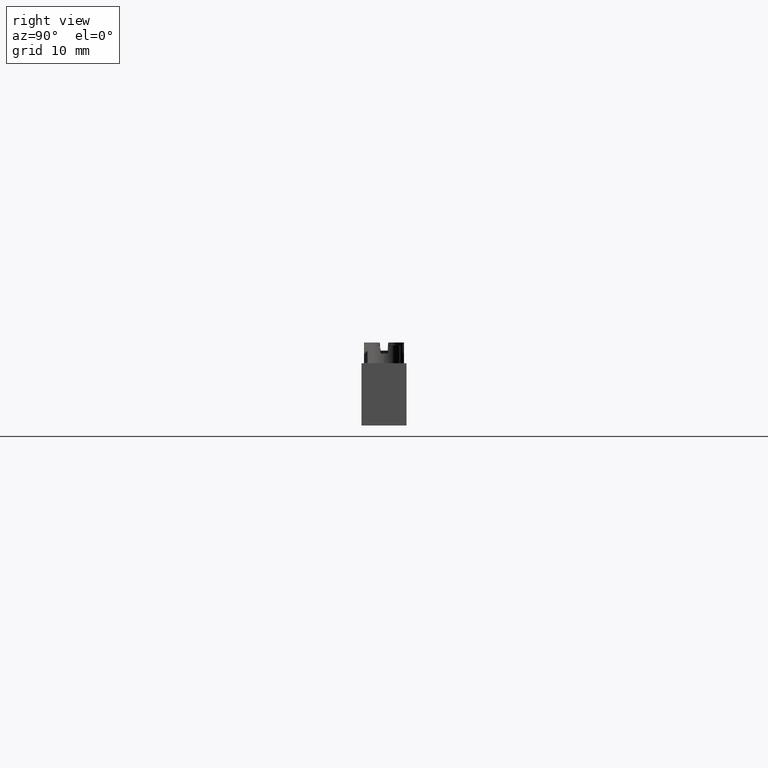
[diagram: clean part render]
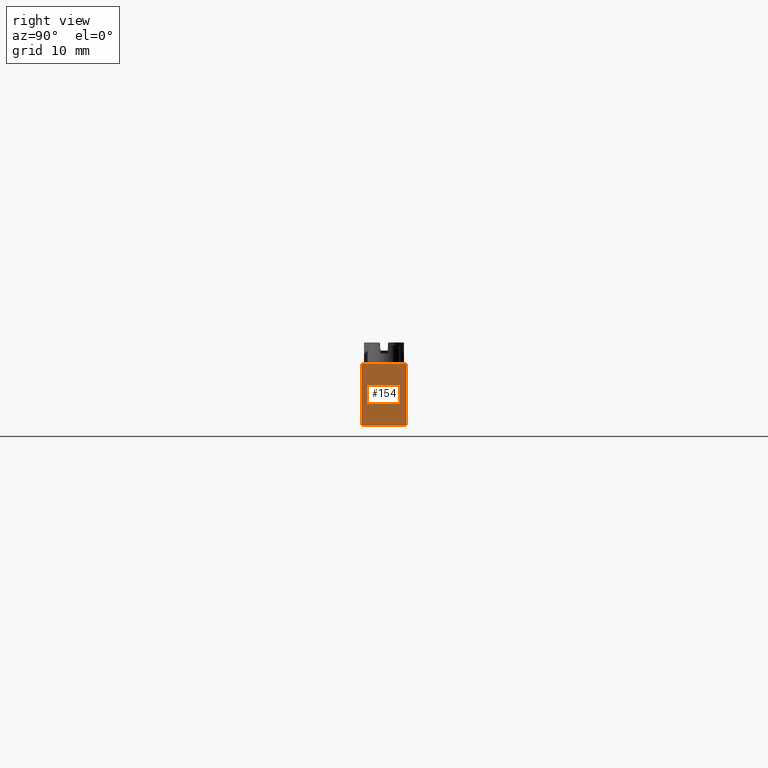
[diagram: same view with one face highlighted and labeled with its STEP entity id]
A machine part, right view. The second image highlights one B-rep face of the part: STEP entity #154.
In plain terms, the highlighted planar face has unit normal (-1, 0, 0).
Its self-contained STEP definition (entity closure, byte-faithful):
#154 = ADVANCED_FACE ( 'NONE', ( #1543 ), #1540, .F. ) ;
#457 = VERTEX_POINT ( 'NONE', #6198 ) ;
#498 = VERTEX_POINT ( 'NONE', #6177 ) ;
#499 = VERTEX_POINT ( 'NONE', #9116 ) ;
#1540 = PLANE ( 'NONE',  #9190 ) ;
#1543 = FACE_OUTER_BOUND ( 'NONE', #4385, .T. ) ;
#1574 = CARTESIAN_POINT ( 'NONE',  ( 104.7000000000000000, 0.0000000000000000000, 9.000000000000001800 ) ) ;
#1579 = DIRECTION ( 'NONE',  ( -1.000000000000000000, 0.0000000000000000000, 0.0000000000000000000 ) ) ;
#1580 = DIRECTION ( 'NONE',  ( 0.0000000000000000000, 0.0000000000000000000, 1.000000000000000000 ) ) ;
#1762 = VERTEX_POINT ( 'NONE', #8394 ) ;
#2235 = VECTOR ( 'NONE', #9695, 1000.000000000000000 ) ;
#2238 = VECTOR ( 'NONE', #9731, 1000.000000000000000 ) ;
#2241 = VECTOR ( 'NONE', #9768, 1000.000000000000000 ) ;
#2251 = VECTOR ( 'NONE', #9815, 1000.000000000000000 ) ;
#3898 = ORIENTED_EDGE ( 'NONE', *, *, #6998, .F. ) ;
#3905 = ORIENTED_EDGE ( 'NONE', *, *, #6980, .F. ) ;
#3907 = ORIENTED_EDGE ( 'NONE', *, *, #7017, .T. ) ;
#3919 = ORIENTED_EDGE ( 'NONE', *, *, #6992, .F. ) ;
#4385 = EDGE_LOOP ( 'NONE', ( #3905, #3898, #3907, #3919 ) ) ;
#6177 = CARTESIAN_POINT ( 'NONE',  ( 104.7000000000000000, 6.500000000000000000, 9.000000000000001800 ) ) ;
#6198 = CARTESIAN_POINT ( 'NONE',  ( 104.7000000000000000, 0.0000000000000000000, 0.0000000000000000000 ) ) ;
#6980 = EDGE_CURVE ( 'NONE', #498, #499, #9724, .T. ) ;
#6992 = EDGE_CURVE ( 'NONE', #499, #457, #9735, .T. ) ;
#6998 = EDGE_CURVE ( 'NONE', #1762, #498, #9777, .T. ) ;
#7017 = EDGE_CURVE ( 'NONE', #1762, #457, #9790, .T. ) ;
#8394 = CARTESIAN_POINT ( 'NONE',  ( 104.7000000000000000, 0.0000000000000000000, 9.000000000000001800 ) ) ;
#9116 = CARTESIAN_POINT ( 'NONE',  ( 104.7000000000000000, 6.499999999999999100, 0.0000000000000000000 ) ) ;
#9190 = AXIS2_PLACEMENT_3D ( 'NONE', #1574, #1579, #1580 ) ;
#9695 = DIRECTION ( 'NONE',  ( 0.0000000000000000000, 0.0000000000000000000, -1.000000000000000000 ) ) ;
#9716 = CARTESIAN_POINT ( 'NONE',  ( 104.7000000000000000, 6.500000000000000000, 9.000000000000001800 ) ) ;
#9724 = LINE ( 'NONE', #9716, #2235 ) ;
#9731 = DIRECTION ( 'NONE',  ( 0.0000000000000000000, -1.000000000000000000, 0.0000000000000000000 ) ) ;
#9735 = LINE ( 'NONE', #9741, #2238 ) ;
#9741 = CARTESIAN_POINT ( 'NONE',  ( 104.7000000000000000, 0.0000000000000000000, 0.0000000000000000000 ) ) ;
#9767 = CARTESIAN_POINT ( 'NONE',  ( 104.7000000000000000, 6.499999999999999100, 9.000000000000001800 ) ) ;
#9768 = DIRECTION ( 'NONE',  ( 0.0000000000000000000, 1.000000000000000000, 0.0000000000000000000 ) ) ;
#9777 = LINE ( 'NONE', #9767, #2241 ) ;
#9790 = LINE ( 'NONE', #9809, #2251 ) ;
#9809 = CARTESIAN_POINT ( 'NONE',  ( 104.7000000000000000, 0.0000000000000000000, 9.000000000000001800 ) ) ;
#9815 = DIRECTION ( 'NONE',  ( 0.0000000000000000000, 0.0000000000000000000, -1.000000000000000000 ) ) ;